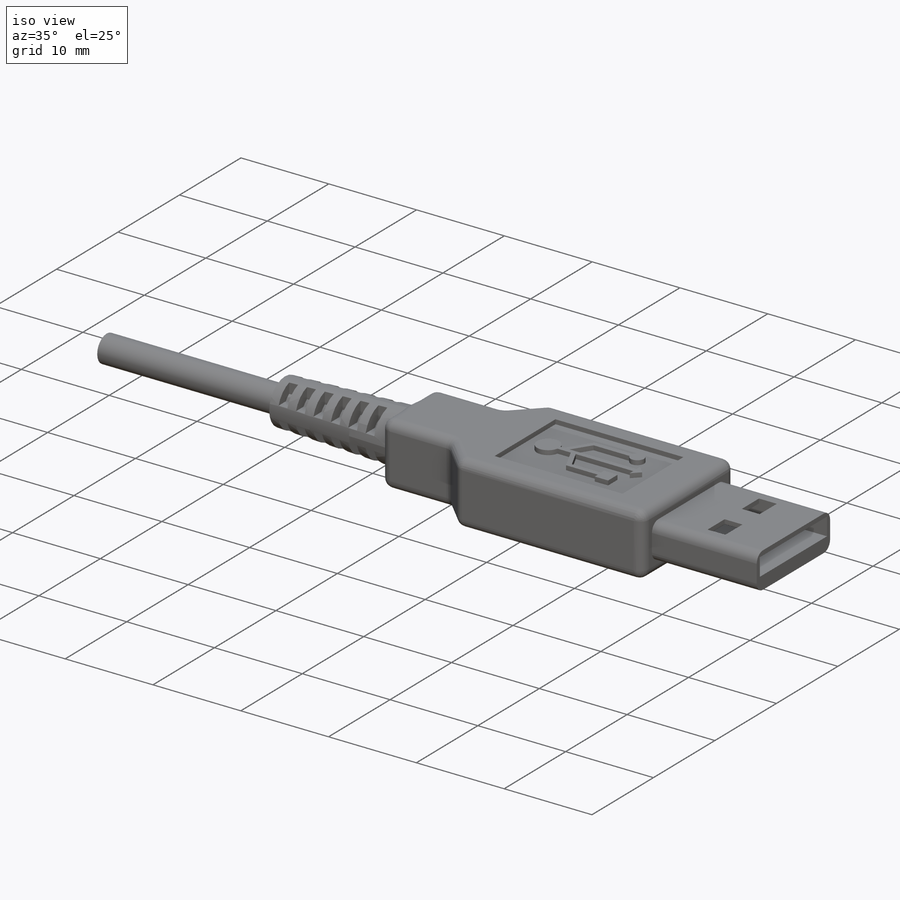
[diagram: iso view]
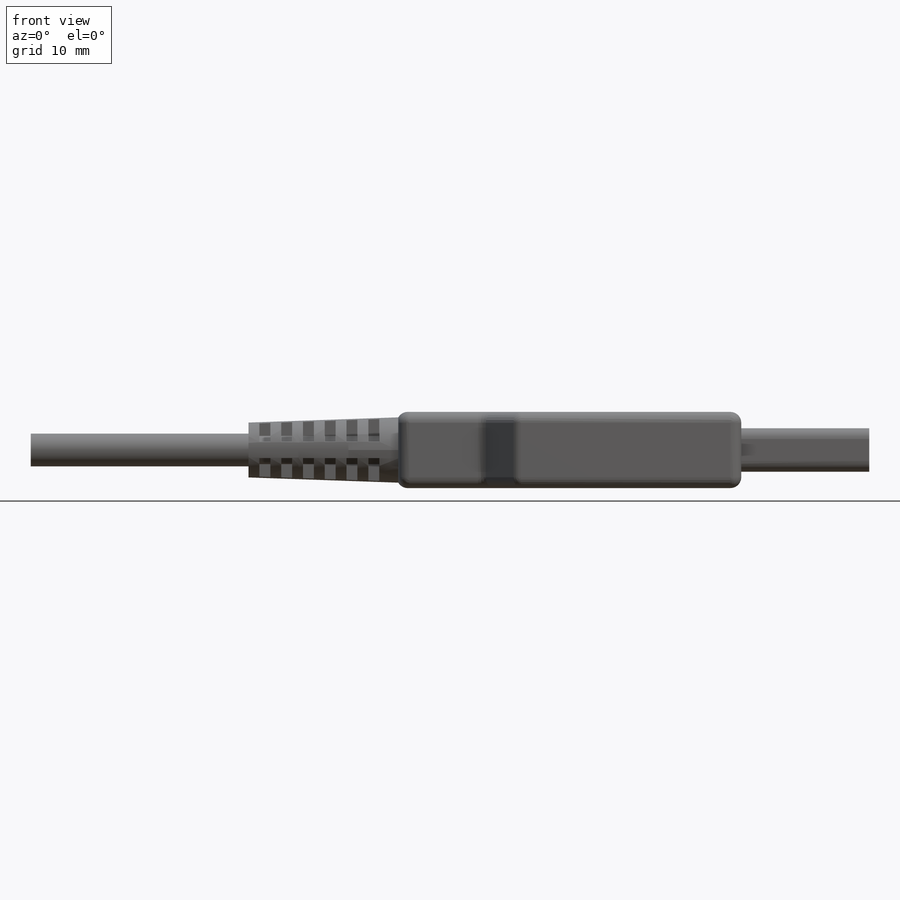
[diagram: front view]
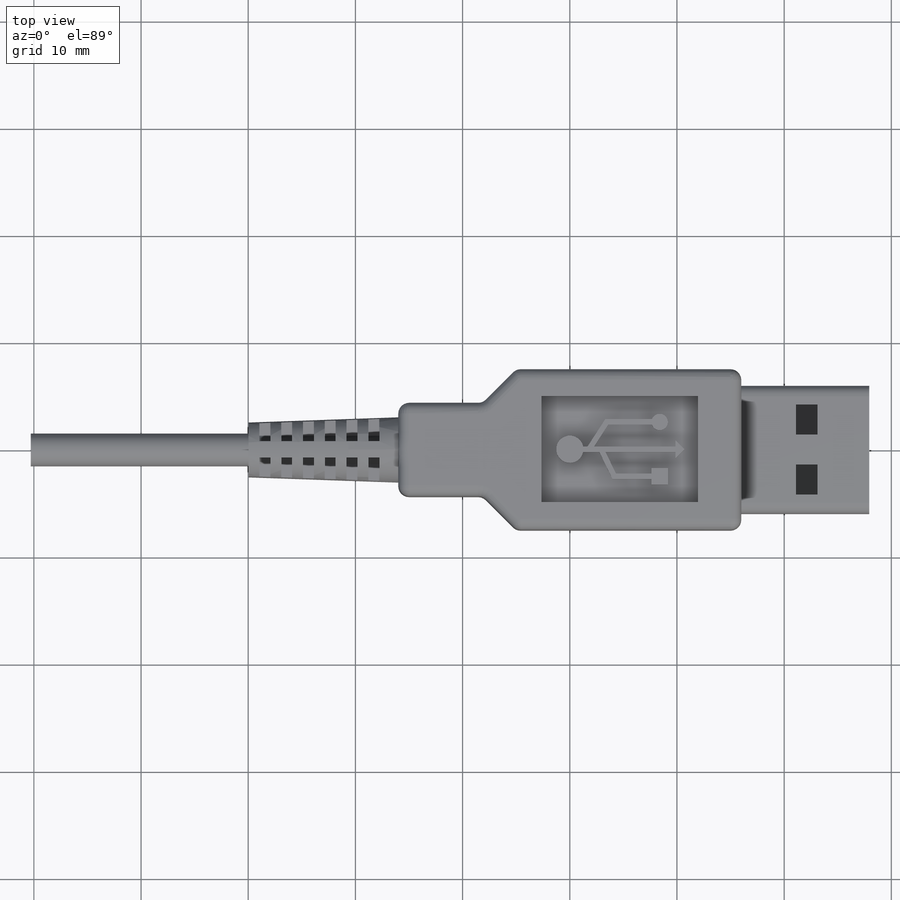
[diagram: top view]
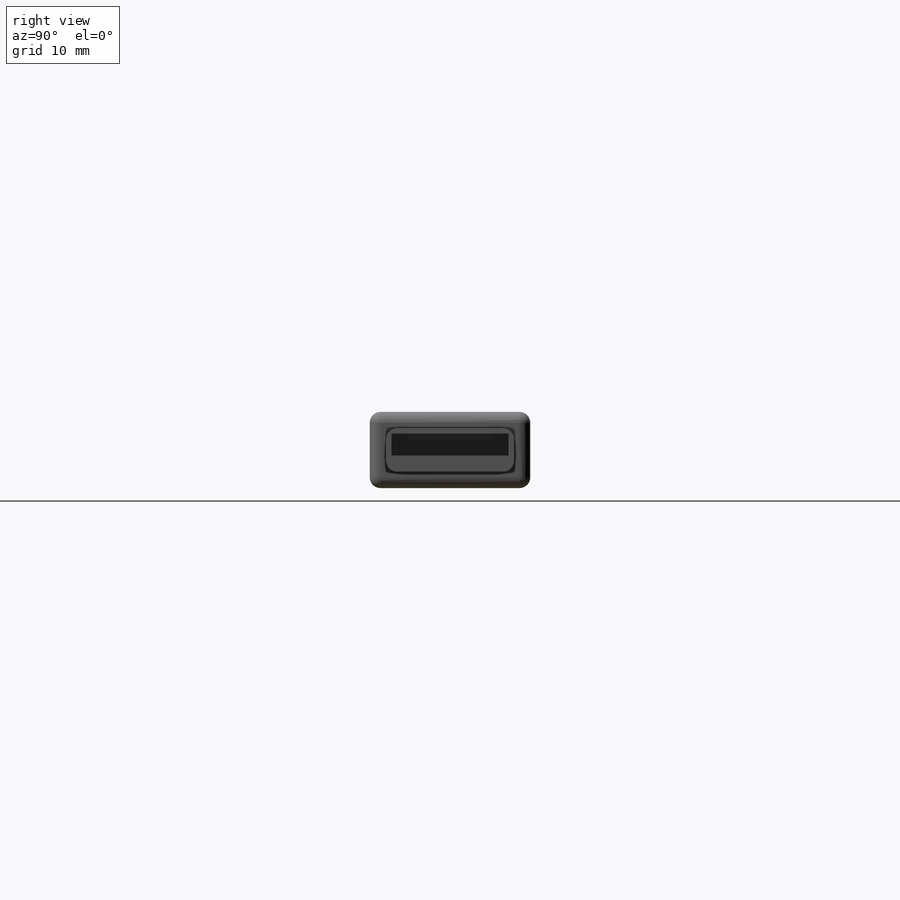
[diagram: right view]
SOLIDWORKS PART (.sldprt)
format: sldprt  version: not decoded by parser v0  size: 726,528 bytes
history: native  units: mm
features: sketch x11, extrude x7, cut_extrude x4, material x1, fillet x1, pattern_linear x1, pattern_circular x1 (+11 scaffold rows collapsed)
feature tree (37):
  scaffold x11  (default folders/planes/origin — collapsed)
  material  "Matériau <non spécifié>"
  sketch  "Sketch1"  dims[D1=14.986mm D2=32.004mm]
  extrude  "Boss-Extrude1"  Depth=7.112mm
  sketch  "Sketch2"  dims[c1.D1=7.874mm c1.D2=~3.132378mm c1.D3=7.874mm c2.D3=135.0deg]
  cut_extrude  "Cut-Extrude1"  [1 undecoded]
  sketch  "Sketch3"  dims[D1=6.096mm]
  extrude  "Boss-Extrude2"  Depth=13.97mm
  sketch  "Sketch4"  dims[D1=3.048mm]
  extrude  "Boss-Extrude3"  Depth=20.32mm
  sketch  "Sketch5"  dims[D1=~14.571878mm D2=9.906mm D3=4.064mm]
  cut_extrude  "Cut-Extrude2"  Depth=0.508mm
  sketch  "Sketch6"  dims[D1=2.54mm D4=1.524mm D5=8.382mm D6=1.524mm D7=1.524mm D8=8.382mm D2=2.54mm D3=2.54mm]
  extrude  "Boss-Extrude4"  [1 undecoded]
  sketch  "Sketch11"  dims[D1=0.254mm D2=0.254mm]
  extrude  "Boss-Extrude5"  [1 undecoded]
  sketch  "Sketch12"  dims[D1=11.938mm D2=4.064mm D3=0.508mm]
  extrude  "Boss-Extrude6"  Depth=11.938mm
  sketch  "Sketch14"  dims[D1=2.032mm D2=2.794mm D3=2.794mm D4=6.096mm]
  cut_extrude  "Cut-Extrude3"  [1 undecoded]
  sketch  "Sketch15"  dims[D1=1.016mm]
  extrude  "Boss-Extrude7"  [1 undecoded]
  fillet  "Fillet2"  Radius=1.016mm
  sketch  "Sketch16"  dims[D1=~5.120314mm D2=~5.120314mm D3=0.762mm D4=0.762mm D5=~3.753384mm D6=~3.633585mm]
  cut_extrude  "Cut-Extrude19"  Depth=1.016mm
  pattern_linear  "LPattern1"  Count1=6 Count2=1 Spacing1=2.032mm Spacing2=50mm
  pattern_circular  "CirPattern1"  Count=4 Angle=90deg
decode coverage: 20 of 25 modeling features carry decoded parameters
note: ~ marks probable driven/reference dimensions
note: 5 parameter values undecoded
summary: no parameter record found for 5 features
note: suppression state not decoded; provenance and decode notes live in map.json
